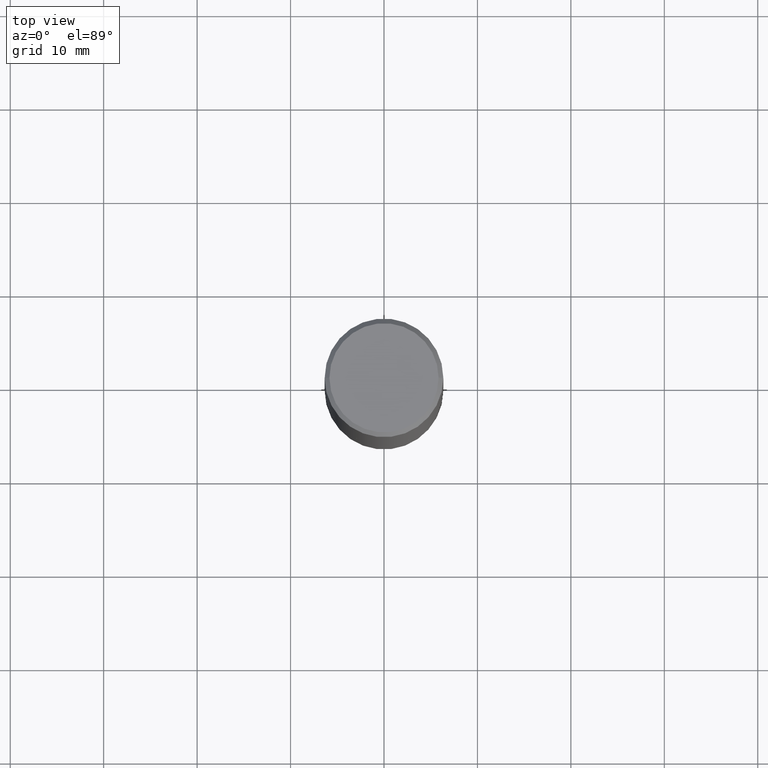
[diagram: clean part render]
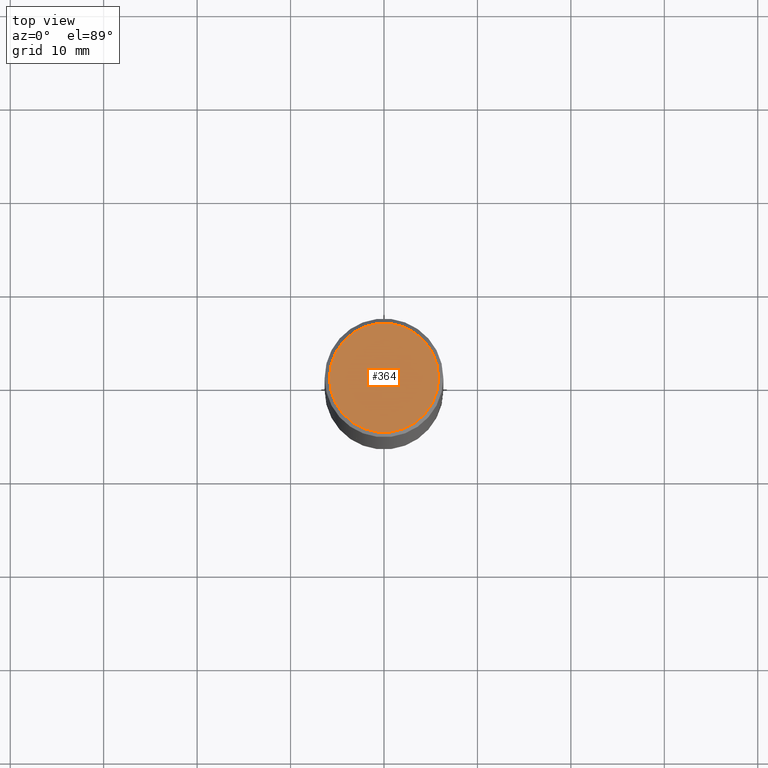
[diagram: same view with one face highlighted and labeled with its STEP entity id]
A machine part, top view. The second image highlights one B-rep face of the part: STEP entity #364.
In plain terms, the highlighted planar face has unit normal (0, -0, -1).
Its self-contained STEP definition (entity closure, byte-faithful):
#1 = CARTESIAN_POINT ( 'NONE',  ( -0.2299999999999992328, 1.640996229256267392E-15, 8.537024980189468815E-18 ) ) ;
#29 = CIRCLE ( 'NONE', #463, 0.2299999999999992328 ) ;
#114 = EDGE_LOOP ( 'NONE', ( #417, #457 ) ) ;
#147 = CARTESIAN_POINT ( 'NONE',  ( -2.087702828670439639E-46, 2.980686340760894400E-32, 8.537024980200822558E-18 ) ) ;
#154 = CARTESIAN_POINT ( 'NONE',  ( 1.606081415867835743E-15, 0.2299999999999992328, -7.987721954438203042E-16 ) ) ;
#156 = CIRCLE ( 'NONE', #490, 0.2299999999999992328 ) ;
#164 = DIRECTION ( 'NONE',  ( -1.000000000000000000, 6.982962677686265922E-15, -4.876176775795935793E-29 ) ) ;
#206 = CARTESIAN_POINT ( 'NONE',  ( -2.087702828670439639E-46, 2.980686340760894400E-32, 8.537024980200822558E-18 ) ) ;
#235 = VERTEX_POINT ( 'NONE', #333 ) ;
#274 = EDGE_CURVE ( 'NONE', #315, #235, #156, .T. ) ;
#277 = PLANE ( 'NONE',  #430 ) ;
#289 = DIRECTION ( 'NONE',  ( -2.445468806185136597E-29, 3.491481338843145583E-15, 1.000000000000000000 ) ) ;
#302 = FACE_OUTER_BOUND ( 'NONE', #114, .T. ) ;
#315 = VERTEX_POINT ( 'NONE', #1 ) ;
#333 = CARTESIAN_POINT ( 'NONE',  ( 0.2299999999999992328, -1.681434332853594278E-15, 8.537024980212318048E-18 ) ) ;
#353 = DIRECTION ( 'NONE',  ( -2.445468806185136597E-29, 3.491481338843145583E-15, 1.000000000000000000 ) ) ;
#364 = ADVANCED_FACE ( 'NONE', ( #302 ), #277, .F. ) ;
#387 = EDGE_CURVE ( 'NONE', #235, #315, #29, .T. ) ;
#410 = DIRECTION ( 'NONE',  ( 1.000000000000000000, -6.982962677686266711E-15, 4.875813741439116029E-29 ) ) ;
#416 = DIRECTION ( 'NONE',  ( 1.000000000000000000, -6.982962677686266711E-15, 4.875813741439116029E-29 ) ) ;
#417 = ORIENTED_EDGE ( 'NONE', *, *, #274, .T. ) ;
#428 = DIRECTION ( 'NONE',  ( 2.438088387897960049E-29, -3.491481338843145188E-15, -1.000000000000000000 ) ) ;
#430 = AXIS2_PLACEMENT_3D ( 'NONE', #154, #428, #164 ) ;
#457 = ORIENTED_EDGE ( 'NONE', *, *, #387, .T. ) ;
#463 = AXIS2_PLACEMENT_3D ( 'NONE', #206, #353, #416 ) ;
#490 = AXIS2_PLACEMENT_3D ( 'NONE', #147, #289, #410 ) ;